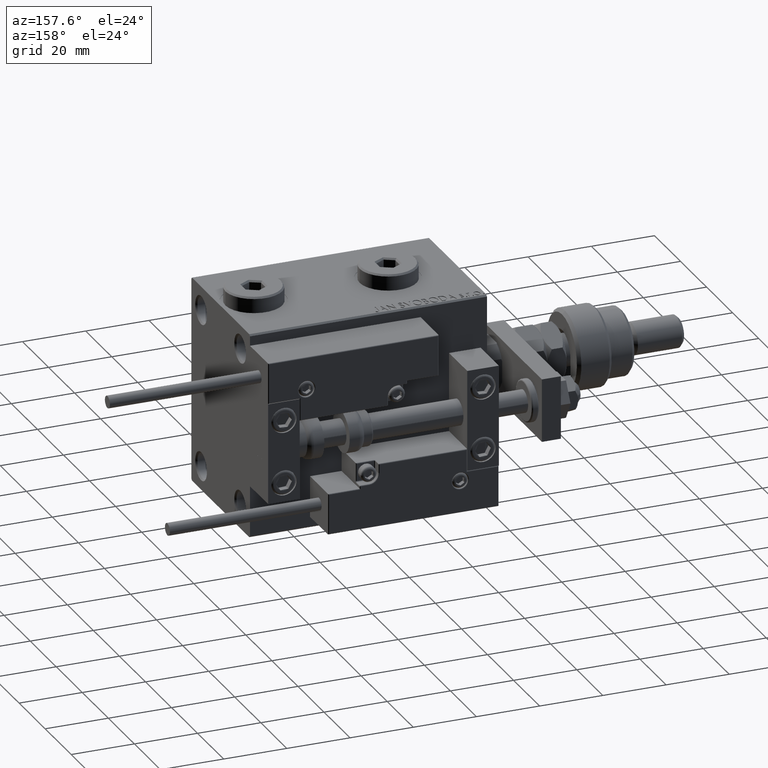
[diagram: clean part render]
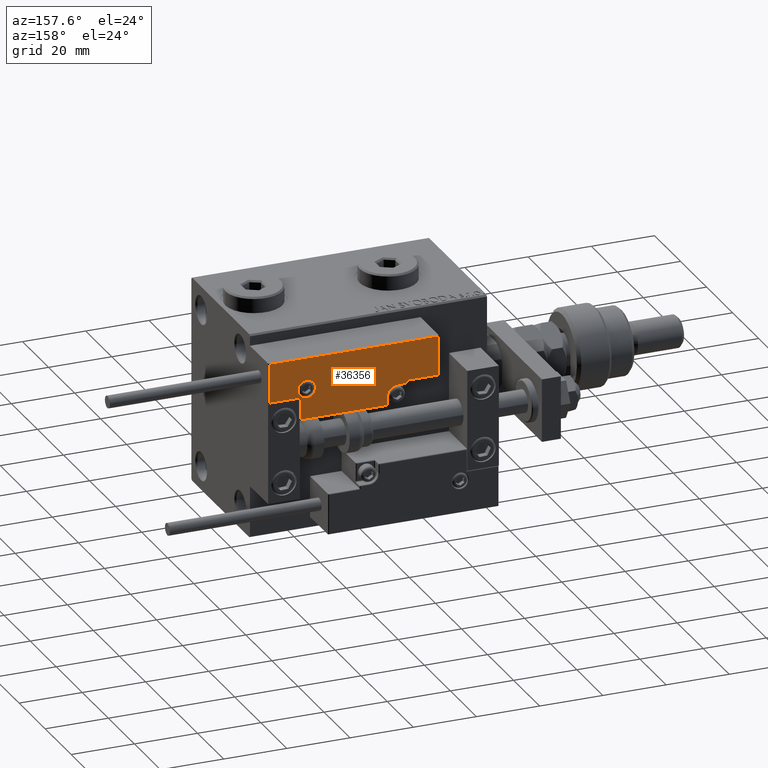
[diagram: same view with one face highlighted and labeled with its STEP entity id]
A machine part, auxiliary view. The second image highlights one B-rep face of the part: STEP entity #36356.
In plain terms, the highlighted planar face has unit normal (-0, 1, -0).
Its self-contained STEP definition (entity closure, byte-faithful):
#1200 = AXIS2_PLACEMENT_3D ( 'NONE', #11983, #46152, #7788 ) ;
#1518 = FACE_OUTER_BOUND ( 'NONE', #11618, .T. ) ;
#1700 = VECTOR ( 'NONE', #19756, 1000.000000000000000 ) ;
#2528 = VERTEX_POINT ( 'NONE', #34600 ) ;
#2877 = AXIS2_PLACEMENT_3D ( 'NONE', #53841, #50473, #32831 ) ;
#3380 = DIRECTION ( 'NONE',  ( 1.000000000000000000, -0.000000000000000000, 0.000000000000000000 ) ) ;
#4146 = VERTEX_POINT ( 'NONE', #11942 ) ;
#4184 = EDGE_CURVE ( 'NONE', #6941, #54767, #49186, .T. ) ;
#4933 = EDGE_CURVE ( 'NONE', #21456, #6587, #39400, .T. ) ;
#5427 = DIRECTION ( 'NONE',  ( -0.000000000000000000, 0.000000000000000000, 1.000000000000000000 ) ) ;
#5536 = LINE ( 'NONE', #52036, #46733 ) ;
#5632 = CARTESIAN_POINT ( 'NONE',  ( 10.69999999999999929, 3.000000000000003109, 14.00000000000000000 ) ) ;
#5841 = CARTESIAN_POINT ( 'NONE',  ( 16.69999999999999929, 7.000000000000009770, 14.00000000000000000 ) ) ;
#6319 = DIRECTION ( 'NONE',  ( 0.000000000000000000, -0.000000000000000000, -1.000000000000000000 ) ) ;
#6431 = CARTESIAN_POINT ( 'NONE',  ( 26.70000000000006324, 20.00000000000001776, 14.00000000000000000 ) ) ;
#6587 = VERTEX_POINT ( 'NONE', #42308 ) ;
#6941 = VERTEX_POINT ( 'NONE', #40584 ) ;
#7156 = EDGE_CURVE ( 'NONE', #4146, #21948, #18991, .T. ) ;
#7511 = CARTESIAN_POINT ( 'NONE',  ( 13.99999999999999822, 6.300000000000001599, 14.00000000000000000 ) ) ;
#7788 = DIRECTION ( 'NONE',  ( 1.000000000000000000, 0.000000000000000000, 0.000000000000000000 ) ) ;
#7857 = LINE ( 'NONE', #37252, #31267 ) ;
#9074 = VECTOR ( 'NONE', #24069, 1000.000000000000000 ) ;
#9080 = DIRECTION ( 'NONE',  ( 1.000000000000000000, 0.000000000000000000, 0.000000000000000000 ) ) ;
#9617 = CARTESIAN_POINT ( 'NONE',  ( -26.69999999999994600, 7.300000000000005151, 14.00000000000000000 ) ) ;
#9841 = VECTOR ( 'NONE', #33838, 1000.000000000000000 ) ;
#10520 = CARTESIAN_POINT ( 'NONE',  ( -14.79999999999994920, 9.800000000000004263, 14.00000000000000000 ) ) ;
#10690 = EDGE_CURVE ( 'NONE', #2528, #6941, #17015, .T. ) ;
#10815 = CARTESIAN_POINT ( 'NONE',  ( 10.69999999999999929, 0.3000000000000032085, 14.00000000000000000 ) ) ;
#11221 = ORIENTED_EDGE ( 'NONE', *, *, #36982, .T. ) ;
#11618 = EDGE_LOOP ( 'NONE', ( #15461, #29391, #22879, #44567, #11221, #25005, #45949, #44485, #27564, #43619, #44911 ) ) ;
#11642 = VERTEX_POINT ( 'NONE', #23438 ) ;
#11942 = CARTESIAN_POINT ( 'NONE',  ( 16.69999999999999929, 6.300000000000003375, 14.00000000000000000 ) ) ;
#11983 = CARTESIAN_POINT ( 'NONE',  ( -14.79999999999994920, 9.800000000000004263, 14.00000000000000000 ) ) ;
#12129 = VERTEX_POINT ( 'NONE', #28978 ) ;
#12328 = CARTESIAN_POINT ( 'NONE',  ( 11.00000000000000000, 0.3000000000000032085, 14.00000000000000000 ) ) ;
#12711 = LINE ( 'NONE', #30630, #51362 ) ;
#12817 = CARTESIAN_POINT ( 'NONE',  ( -16.69999999999999218, 3.252606517456513302E-15, 14.00000000000000000 ) ) ;
#12980 = DIRECTION ( 'NONE',  ( 1.000000000000000000, -1.734723475976796001E-16, 0.000000000000000000 ) ) ;
#13543 = FACE_BOUND ( 'NONE', #16613, .T. ) ;
#13746 = EDGE_CURVE ( 'NONE', #54701, #2528, #15646, .T. ) ;
#14792 = EDGE_CURVE ( 'NONE', #54767, #21456, #5536, .T. ) ;
#14881 = AXIS2_PLACEMENT_3D ( 'NONE', #10520, #6319, #32357 ) ;
#15461 = ORIENTED_EDGE ( 'NONE', *, *, #4933, .T. ) ;
#15548 = EDGE_CURVE ( 'NONE', #12129, #53923, #27042, .T. ) ;
#15646 = LINE ( 'NONE', #6431, #9074 ) ;
#16183 = EDGE_CURVE ( 'NONE', #16782, #12129, #28322, .T. ) ;
#16613 = EDGE_LOOP ( 'NONE', ( #46726, #29687 ) ) ;
#16672 = EDGE_CURVE ( 'NONE', #11642, #20655, #52153, .T. ) ;
#16782 = VERTEX_POINT ( 'NONE', #10815 ) ;
#17015 = LINE ( 'NONE', #55406, #9841 ) ;
#17298 = CARTESIAN_POINT ( 'NONE',  ( -17.59999999999994813, 9.800000000000004263, 14.00000000000000000 ) ) ;
#17307 = CARTESIAN_POINT ( 'NONE',  ( 16.69999999999999929, 7.300000000000009592, 14.00000000000000000 ) ) ;
#17797 = AXIS2_PLACEMENT_3D ( 'NONE', #22230, #5427, #9080 ) ;
#18303 = PLANE ( 'NONE',  #17797 ) ;
#18747 = VECTOR ( 'NONE', #53173, 1000.000000000000000 ) ;
#18991 = LINE ( 'NONE', #5841, #18747 ) ;
#19756 = DIRECTION ( 'NONE',  ( -8.006416042969869188E-16, -1.000000000000000000, 0.000000000000000000 ) ) ;
#20655 = VERTEX_POINT ( 'NONE', #17298 ) ;
#21456 = VERTEX_POINT ( 'NONE', #27199 ) ;
#21948 = VERTEX_POINT ( 'NONE', #17307 ) ;
#22219 = CARTESIAN_POINT ( 'NONE',  ( 26.70000000000006324, 7.300000000000007816, 14.00000000000000000 ) ) ;
#22230 = CARTESIAN_POINT ( 'NONE',  ( 0.000000000000000000, 0.000000000000000000, 14.00000000000000000 ) ) ;
#22675 = EDGE_CURVE ( 'NONE', #21948, #54701, #12711, .T. ) ;
#22879 = ORIENTED_EDGE ( 'NONE', *, *, #16183, .T. ) ;
#23438 = CARTESIAN_POINT ( 'NONE',  ( -11.99999999999994849, 9.800000000000004263, 14.00000000000000000 ) ) ;
#24069 = DIRECTION ( 'NONE',  ( 0.000000000000000000, 1.000000000000000000, -0.000000000000000000 ) ) ;
#24487 = VECTOR ( 'NONE', #3380, 1000.000000000000000 ) ;
#25005 = ORIENTED_EDGE ( 'NONE', *, *, #7156, .T. ) ;
#27042 = CIRCLE ( 'NONE', #2877, 3.299999999999997158 ) ;
#27199 = CARTESIAN_POINT ( 'NONE',  ( -16.69999999999999218, 7.300000000000003375, 14.00000000000000000 ) ) ;
#27429 = EDGE_CURVE ( 'NONE', #20655, #11642, #39952, .T. ) ;
#27564 = ORIENTED_EDGE ( 'NONE', *, *, #10690, .T. ) ;
#28322 = LINE ( 'NONE', #5632, #33348 ) ;
#28978 = CARTESIAN_POINT ( 'NONE',  ( 10.69999999999999929, 3.000000000000003109, 14.00000000000000000 ) ) ;
#29391 = ORIENTED_EDGE ( 'NONE', *, *, #49354, .T. ) ;
#29687 = ORIENTED_EDGE ( 'NONE', *, *, #27429, .T. ) ;
#30630 = CARTESIAN_POINT ( 'NONE',  ( 27.00000000000006395, 7.300000000000007816, 14.00000000000000000 ) ) ;
#31267 = VECTOR ( 'NONE', #33890, 1000.000000000000000 ) ;
#32116 = CARTESIAN_POINT ( 'NONE',  ( -26.69999999999994600, 7.000000000000005329, 14.00000000000000000 ) ) ;
#32357 = DIRECTION ( 'NONE',  ( 1.000000000000000000, 0.000000000000000000, 0.000000000000000000 ) ) ;
#32831 = DIRECTION ( 'NONE',  ( 1.000000000000000000, 0.000000000000000000, 0.000000000000000000 ) ) ;
#33348 = VECTOR ( 'NONE', #52687, 1000.000000000000000 ) ;
#33838 = DIRECTION ( 'NONE',  ( -1.000000000000000000, 6.424901762877063495E-17, -0.000000000000000000 ) ) ;
#33890 = DIRECTION ( 'NONE',  ( 1.000000000000000000, 5.782411586589357639E-16, -0.000000000000000000 ) ) ;
#34600 = CARTESIAN_POINT ( 'NONE',  ( 26.70000000000006324, 19.70000000000001705, 14.00000000000000000 ) ) ;
#35510 = DIRECTION ( 'NONE',  ( 1.000000000000000000, -1.734723475976815230E-16, 0.000000000000000000 ) ) ;
#36356 = ADVANCED_FACE ( 'NONE', ( #13543, #1518 ), #18303, .T. ) ;
#36982 = EDGE_CURVE ( 'NONE', #53923, #4146, #7857, .T. ) ;
#37252 = CARTESIAN_POINT ( 'NONE',  ( 17.00000000000000000, 6.300000000000003375, 14.00000000000000000 ) ) ;
#39400 = LINE ( 'NONE', #12817, #53538 ) ;
#39952 = CIRCLE ( 'NONE', #14881, 2.800000000000000266 ) ;
#40584 = CARTESIAN_POINT ( 'NONE',  ( -26.69999999999993534, 19.70000000000002061, 14.00000000000000000 ) ) ;
#42308 = CARTESIAN_POINT ( 'NONE',  ( -16.69999999999999218, 0.3000000000000032085, 14.00000000000000000 ) ) ;
#42776 = DIRECTION ( 'NONE',  ( 0.000000000000000000, -1.000000000000000000, 0.000000000000000000 ) ) ;
#43619 = ORIENTED_EDGE ( 'NONE', *, *, #4184, .T. ) ;
#44485 = ORIENTED_EDGE ( 'NONE', *, *, #13746, .T. ) ;
#44567 = ORIENTED_EDGE ( 'NONE', *, *, #15548, .T. ) ;
#44911 = ORIENTED_EDGE ( 'NONE', *, *, #14792, .T. ) ;
#45949 = ORIENTED_EDGE ( 'NONE', *, *, #22675, .T. ) ;
#46152 = DIRECTION ( 'NONE',  ( 0.000000000000000000, -0.000000000000000000, -1.000000000000000000 ) ) ;
#46220 = LINE ( 'NONE', #12328, #24487 ) ;
#46726 = ORIENTED_EDGE ( 'NONE', *, *, #16672, .T. ) ;
#46733 = VECTOR ( 'NONE', #35510, 1000.000000000000000 ) ;
#49186 = LINE ( 'NONE', #32116, #1700 ) ;
#49354 = EDGE_CURVE ( 'NONE', #6587, #16782, #46220, .T. ) ;
#50473 = DIRECTION ( 'NONE',  ( 0.000000000000000000, -0.000000000000000000, -1.000000000000000000 ) ) ;
#51362 = VECTOR ( 'NONE', #12980, 1000.000000000000000 ) ;
#52036 = CARTESIAN_POINT ( 'NONE',  ( -16.99999999999999289, 7.300000000000003375, 14.00000000000000000 ) ) ;
#52153 = CIRCLE ( 'NONE', #1200, 2.800000000000000266 ) ;
#52687 = DIRECTION ( 'NONE',  ( -0.000000000000000000, 1.000000000000000000, -0.000000000000000000 ) ) ;
#53173 = DIRECTION ( 'NONE',  ( 9.912705577010318647E-16, 1.000000000000000000, 0.000000000000000000 ) ) ;
#53538 = VECTOR ( 'NONE', #42776, 1000.000000000000000 ) ;
#53841 = CARTESIAN_POINT ( 'NONE',  ( 13.99999999999999822, 3.000000000000002665, 14.00000000000000000 ) ) ;
#53923 = VERTEX_POINT ( 'NONE', #7511 ) ;
#54701 = VERTEX_POINT ( 'NONE', #22219 ) ;
#54767 = VERTEX_POINT ( 'NONE', #9617 ) ;
#55406 = CARTESIAN_POINT ( 'NONE',  ( -26.99999999999993605, 19.70000000000002061, 14.00000000000000000 ) ) ;